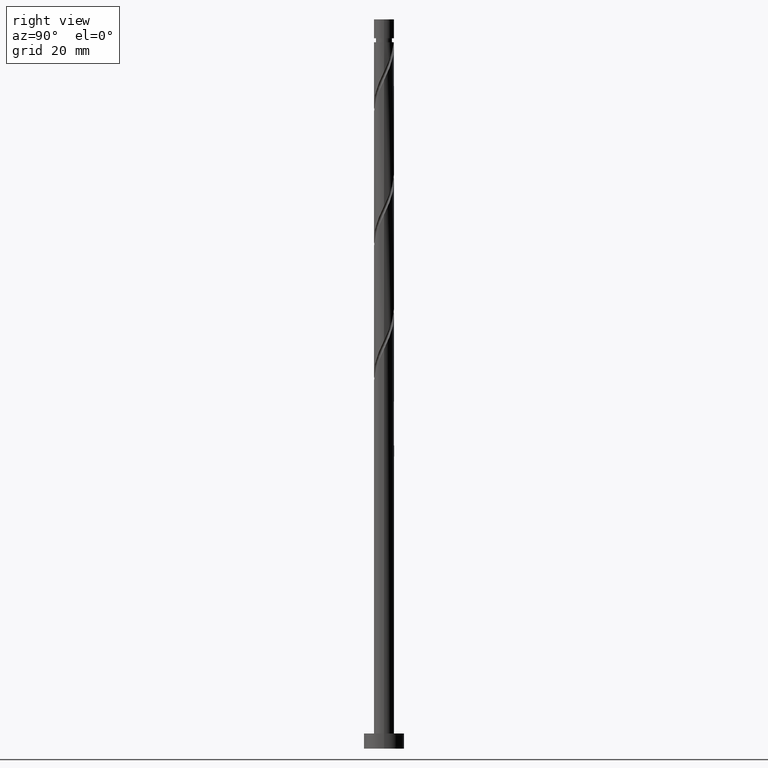
[diagram: clean part render]
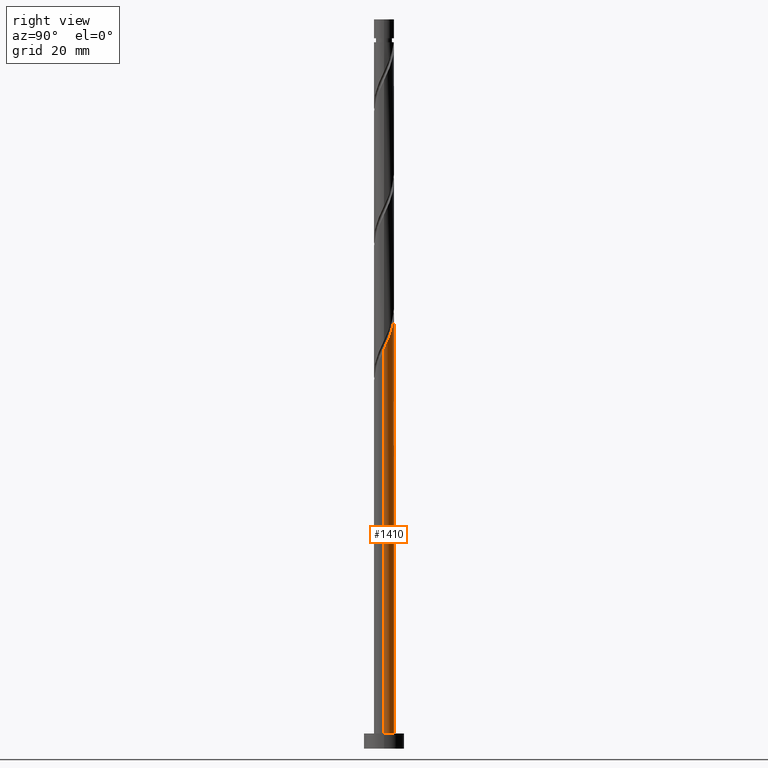
[diagram: same view with one face highlighted and labeled with its STEP entity id]
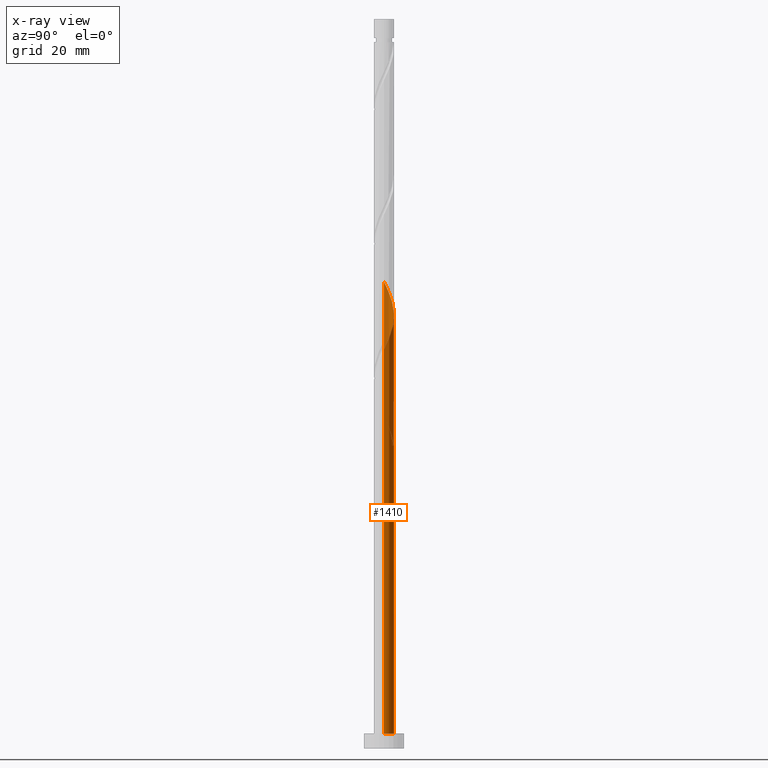
[diagram: x-ray of the same camera — body ghosted, the highlighted face saturated]
A machine part, right view. The second image highlights one B-rep face of the part: STEP entity #1410.
The next image is the same camera in x-ray: the body ghosted, the highlighted face saturated — about 0% of this face is hidden behind the body in this view.
In plain terms, the highlighted cylindrical surface (edge-blend (fillet) strip) has radius 2 mm, axis along (-0, -0, -1).
Its self-contained STEP definition (entity closure, byte-faithful):
#8 =( BOUNDED_CURVE ( )  B_SPLINE_CURVE ( 2, ( #1350, #1491, #197, #1230, #717, #70, #586, #725, #737, #1267, #1294 ),
 .UNSPECIFIED., .F., .T. ) 
 B_SPLINE_CURVE_WITH_KNOTS ( ( 3, 2, 2, 2, 2, 3 ),
 ( 0.000000000000000000, 0.01136363636363635354, 0.02272727272727270709, 0.03409090909090906063, 0.04545454545454541417, 0.05452521624175140497 ),
 .UNSPECIFIED. ) 
 CURVE ( )  GEOMETRIC_REPRESENTATION_ITEM ( )  RATIONAL_B_SPLINE_CURVE ( ( 0.9090909090909258250, 0.8998376744372282854, 0.9090909090909258250, 0.8998376744372282854, 0.9090909090909258250, 0.8998376744372282854, 0.9090909090909258250, 0.8998376744372282854, 0.9090909090909258250, 0.9017048011080056602, 0.9061101570135663419 ) ) 
 REPRESENTATION_ITEM ( '' )  );
#12 = DIRECTION ( 'NONE',  ( -0.000000000000000000, -0.000000000000000000, -1.000000000000000000 ) ) ;
#34 = CARTESIAN_POINT ( 'NONE',  ( -1.999999999999999112, 0.05755105304764902840, 67.46219427857302264 ) ) ;
#41 = CARTESIAN_POINT ( 'NONE',  ( -1.220637884402353768, 1.584311571365223825, 63.70453477368732820 ) ) ;
#47 = CARTESIAN_POINT ( 'NONE',  ( -0.1703224295138022204, 1.992734370156873824, 61.28029234944492032 ) ) ;
#70 = CARTESIAN_POINT ( 'NONE',  ( -1.600603406160407305, 1.233189980288575072, 63.09847416762673333 ) ) ;
#78 = CARTESIAN_POINT ( 'NONE',  ( -1.600603406160407305, 1.233189980288575072, 89.76514083429340474 ) ) ;
#88 = CARTESIAN_POINT ( 'NONE',  ( 1.617545623245914888, 1.176242388590887922, 81.88635295550554360 ) ) ;
#102 = CARTESIAN_POINT ( 'NONE',  ( -1.999999999999999112, 2.146303770951738101E-15, 67.58429228329124783 ) ) ;
#119 = CARTESIAN_POINT ( 'NONE',  ( -0.3979949748426483969, 1.960000000000003073, 86.73483780399037357 ) ) ;
#149 = DIRECTION ( 'NONE',  ( -1.000000000000000000, 0.000000000000000000, 0.000000000000000000 ) ) ;
#174 = CARTESIAN_POINT ( 'NONE',  ( -1.980155124014550738, 0.4020876473299554443, 66.73483780399035936 ) ) ;
#180 = CARTESIAN_POINT ( 'NONE',  ( -1.786663747202081876, 0.9436744384215539627, 65.52271659186915542 ) ) ;
#197 = CARTESIAN_POINT ( 'NONE',  ( -0.9340691933046030293, 1.768478086411957806, 61.28029234944492032 ) ) ;
#202 = VERTEX_POINT ( 'NONE', #473 ) ;
#208 = VERTEX_POINT ( 'NONE', #605 ) ;
#238 = CARTESIAN_POINT ( 'NONE',  ( -1.394470680848408417, 1.433684595806968387, 89.15908022823278145 ) ) ;
#247 = ORIENTED_EDGE ( 'NONE', *, *, #1112, .F. ) ;
#250 = CARTESIAN_POINT ( 'NONE',  ( 2.000000000000003553, 1.450811608239142856E-15, 79.21871665802281370 ) ) ;
#292 = LINE ( 'NONE', #1178, #783 ) ;
#309 = AXIS2_PLACEMENT_3D ( 'NONE', #1012, #891, #1521 ) ;
#317 = CARTESIAN_POINT ( 'NONE',  ( 0.3979949748426488965, 1.959999999999999520, 60.06817113732369506 ) ) ;
#358 = CARTESIAN_POINT ( 'NONE',  ( -0.1161895186125002782, 2.017223038501450905, 86.12877719792975029 ) ) ;
#367 = VERTEX_POINT ( 'NONE', #250 ) ;
#369 = CARTESIAN_POINT ( 'NONE',  ( 0.4568343776401064815, 1.968245701812304516, 84.91665598580854635 ) ) ;
#457 = DIRECTION ( 'NONE',  ( -0.000000000000000000, -0.000000000000000000, -1.000000000000000000 ) ) ;
#461 = CARTESIAN_POINT ( 'NONE',  ( -1.188337955536409307, 1.634179211325361480, 88.55301962217218659 ) ) ;
#471 = CARTESIAN_POINT ( 'NONE',  ( 1.220637884402356210, 1.584311571365226490, 83.09847416762670491 ) ) ;
#473 = CARTESIAN_POINT ( 'NONE',  ( 0.3979949748426488965, 1.959999999999999520, 60.06817113732369506 ) ) ;
#485 = CARTESIAN_POINT ( 'NONE',  ( -0.9340691933046030293, 1.768478086411957806, 87.94695901611154909 ) ) ;
#489 = CYLINDRICAL_SURFACE ( 'NONE', #309, 2.000000000000000000 ) ;
#494 = ORIENTED_EDGE ( 'NONE', *, *, #643, .F. ) ;
#547 = VECTOR ( 'NONE', #457, 1000.000000000000000 ) ;
#566 = CARTESIAN_POINT ( 'NONE',  ( 0.1161895186125007917, 2.017223038501447352, 60.67423174338430414 ) ) ;
#586 = CARTESIAN_POINT ( 'NONE',  ( -1.741900447066340618, 0.9827425057002951991, 63.70453477368732820 ) ) ;
#589 = ORIENTED_EDGE ( 'NONE', *, *, #782, .T. ) ;
#595 = ORIENTED_EDGE ( 'NONE', *, *, #1022, .T. ) ;
#600 = ORIENTED_EDGE ( 'NONE', *, *, #1195, .T. ) ;
#605 = CARTESIAN_POINT ( 'NONE',  ( 2.000000000000000000, 2.449293598294706414E-16, 3.000000000000000000 ) ) ;
#620 = EDGE_CURVE ( 'NONE', #953, #202, #1168, .T. ) ;
#628 = CIRCLE ( 'NONE', #1513, 2.000000000000000000 ) ;
#633 = VERTEX_POINT ( 'NONE', #1336 ) ;
#636 = CARTESIAN_POINT ( 'NONE',  ( -0.6798004310727968624, 1.902776961498554797, 87.34089841005095423 ) ) ;
#643 = EDGE_CURVE ( 'NONE', #367, #994, #1224, .T. ) ;
#690 = CARTESIAN_POINT ( 'NONE',  ( -0.4568343776401053158, 1.968245701812300963, 61.88635295550550808 ) ) ;
#707 = VERTEX_POINT ( 'NONE', #1269 ) ;
#716 = EDGE_LOOP ( 'NONE', ( #494, #600, #589, #990, #247, #595, #1116, #830 ) ) ;
#717 = CARTESIAN_POINT ( 'NONE',  ( -1.394470680848408417, 1.433684595806968387, 62.49241356156613847 ) ) ;
#725 = CARTESIAN_POINT ( 'NONE',  ( -1.883197487972274597, 0.7322950311120153266, 64.31059537974793727 ) ) ;
#728 = CARTESIAN_POINT ( 'NONE',  ( -2.000000000000005329, 0.2290578547702384615, 92.06609003838484284 ) ) ;
#737 = CARTESIAN_POINT ( 'NONE',  ( -1.948211798543803219, 0.4521844623765087223, 64.91665598580854635 ) ) ;
#739 = CARTESIAN_POINT ( 'NONE',  ( 0.1703224295138031086, 1.992734370156877821, 85.52271659186915542 ) ) ;
#767 = EDGE_CURVE ( 'NONE', #994, #953, #1104, .T. ) ;
#782 = EDGE_CURVE ( 'NONE', #208, #869, #1430, .T. ) ;
#783 = VECTOR ( 'NONE', #12, 1000.000000000000000 ) ;
#818 = EDGE_CURVE ( 'NONE', #707, #869, #1362, .T. ) ;
#830 = ORIENTED_EDGE ( 'NONE', *, *, #767, .F. ) ;
#849 = DIRECTION ( 'NONE',  ( 1.000000000000000000, 0.000000000000000000, 0.000000000000000000 ) ) ;
#864 = AXIS2_PLACEMENT_3D ( 'NONE', #977, #1488, #849 ) ;
#869 = VERTEX_POINT ( 'NONE', #1234 ) ;
#878 = CARTESIAN_POINT ( 'NONE',  ( 1.980155124014553847, 0.4020876473299552778, 80.06817113732368796 ) ) ;
#887 = CARTESIAN_POINT ( 'NONE',  ( 1.883409435608319527, 0.6728810428757548978, 80.67423174338429703 ) ) ;
#891 = DIRECTION ( 'NONE',  ( -0.000000000000000000, -0.000000000000000000, -1.000000000000000000 ) ) ;
#928 = CARTESIAN_POINT ( 'NONE',  ( -1.996690616564938958, 0.1150068768444773154, 67.34089841005098265 ) ) ;
#952 = CARTESIAN_POINT ( 'NONE',  ( -1.448427499289741238, 1.408810338760219993, 64.31059537974793727 ) ) ;
#953 = VERTEX_POINT ( 'NONE', #102 ) ;
#963 = CARTESIAN_POINT ( 'NONE',  ( 2.000000000000003109, 0.05755105304764836921, 79.34081466274103889 ) ) ;
#977 = CARTESIAN_POINT ( 'NONE',  ( 0.000000000000000000, 0.000000000000000000, 3.000000000000000000 ) ) ;
#990 = ORIENTED_EDGE ( 'NONE', *, *, #818, .F. ) ;
#993 = CARTESIAN_POINT ( 'NONE',  ( 0.9928482695149684067, 1.759812803970230322, 83.70453477368732820 ) ) ;
#994 = VERTEX_POINT ( 'NONE', #1174 ) ;
#1012 = CARTESIAN_POINT ( 'NONE',  ( 0.000000000000000000, 0.000000000000000000, 144.5999999999999943 ) ) ;
#1022 = EDGE_CURVE ( 'NONE', #633, #202, #628, .T. ) ;
#1027 = CARTESIAN_POINT ( 'NONE',  ( 0.7248413235775370556, 1.864029252891267419, 84.31059537974793727 ) ) ;
#1050 = CARTESIAN_POINT ( 'NONE',  ( 0.000000000000000000, 0.000000000000000000, 60.06817113732369506 ) ) ;
#1104 = LINE ( 'NONE', #1612, #547 ) ;
#1112 = EDGE_CURVE ( 'NONE', #633, #707, #8, .T. ) ;
#1116 = ORIENTED_EDGE ( 'NONE', *, *, #620, .F. ) ;
#1131 = FACE_OUTER_BOUND ( 'NONE', #716, .T. ) ;
#1146 = CARTESIAN_POINT ( 'NONE',  ( -1.883197487972274597, 0.7322950311120153266, 90.97726204641462289 ) ) ;
#1168 =( BOUNDED_CURVE ( )  B_SPLINE_CURVE ( 2, ( #1316, #34, #928, #174, #1206, #180, #1464, #952, #41, #1582, #1328, #690, #47, #566, #317 ),
 .UNSPECIFIED., .F., .T. ) 
 B_SPLINE_CURVE_WITH_KNOTS ( ( 3, 2, 2, 2, 2, 2, 2, 3 ),
 ( 0.9295252162417514397, 0.9318181818181817677, 0.9431818181818182323, 0.9545454545454545858, 0.9659090909090909394, 0.9772727272727272929, 0.9886363636363636465, 1.000000000000000000 ),
 .UNSPECIFIED. ) 
 CURVE ( )  GEOMETRIC_REPRESENTATION_ITEM ( )  RATIONAL_B_SPLINE_CURVE ( ( 0.9061101570135594585, 0.9072237824201415668, 0.9090909090909189416, 0.8998376744372211800, 0.9090909090909189416, 0.8998376744372211800, 0.9090909090909189416, 0.8998376744372211800, 0.9090909090909189416, 0.8998376744372211800, 0.9090909090909189416, 0.8998376744372211800, 0.9090909090909189416, 0.8998376744372211800, 0.9090909090909189416 ) ) 
 REPRESENTATION_ITEM ( '' )  );
#1174 = CARTESIAN_POINT ( 'NONE',  ( -2.000000000000003553, -1.570466173867113261E-15, 92.55204999135617072 ) ) ;
#1178 = CARTESIAN_POINT ( 'NONE',  ( 2.000000000000000000, 2.449293598294706414E-16, 144.5999999999999943 ) ) ;
#1195 = EDGE_CURVE ( 'NONE', #367, #208, #292, .T. ) ;
#1206 = CARTESIAN_POINT ( 'NONE',  ( -1.883409435608315752, 0.6728810428757545647, 66.12877719792975029 ) ) ;
#1224 =( BOUNDED_CURVE ( )  B_SPLINE_CURVE ( 2, ( #1595, #963, #1279, #878, #887, #1617, #88, #1384, #471, #993, #1027, #369, #739, #358, #119, #636, #485, #461, #238, #78, #1393, #1146, #1494, #728, #1250 ),
 .UNSPECIFIED., .F., .T. ) 
 B_SPLINE_CURVE_WITH_KNOTS ( ( 3, 2, 2, 2, 2, 2, 2, 2, 2, 2, 2, 2, 3 ),
 ( 0.1795252162417514397, 0.1818181818181817677, 0.1931818181818182323, 0.2045454545454545858, 0.2159090909090909394, 0.2272727272727272929, 0.2386363636363636465, 0.2500000000000000000, 0.2613636363636363535, 0.2727272727272727071, 0.2840909090909090606, 0.2954545454545454142, 0.3045252162417516062 ),
 .UNSPECIFIED. ) 
 CURVE ( )  GEOMETRIC_REPRESENTATION_ITEM ( )  RATIONAL_B_SPLINE_CURVE ( ( 0.9061101570135663419, 0.9072237824201485612, 0.9090909090909258250, 0.8998376744372282854, 0.9090909090909258250, 0.8998376744372282854, 0.9090909090909258250, 0.8998376744372282854, 0.9090909090909258250, 0.8998376744372282854, 0.9090909090909258250, 0.8998376744372282854, 0.9090909090909258250, 0.8998376744372282854, 0.9090909090909258250, 0.8998376744372282854, 0.9090909090909258250, 0.8998376744372282854, 0.9090909090909258250, 0.8998376744372282854, 0.9090909090909258250, 0.8998376744372282854, 0.9090909090909258250, 0.9017048011080054382, 0.9061101570135665639 ) ) 
 REPRESENTATION_ITEM ( '' )  );
#1230 = CARTESIAN_POINT ( 'NONE',  ( -1.188337955536409307, 1.634179211325361480, 61.88635295550552229 ) ) ;
#1234 = CARTESIAN_POINT ( 'NONE',  ( -2.000000000000000000, 0.000000000000000000, 3.000000000000000000 ) ) ;
#1250 = CARTESIAN_POINT ( 'NONE',  ( -2.000000000000003553, -1.570466173867113261E-15, 92.55204999135617072 ) ) ;
#1267 = CARTESIAN_POINT ( 'NONE',  ( -2.000000000000003997, 0.2290578547702434020, 65.39942337171818565 ) ) ;
#1269 = CARTESIAN_POINT ( 'NONE',  ( -2.000000000000003553, -1.570466173867113261E-15, 65.88538332468947090 ) ) ;
#1279 = CARTESIAN_POINT ( 'NONE',  ( 1.996690616564942955, 0.1150068768444766631, 79.46211053126309309 ) ) ;
#1294 = CARTESIAN_POINT ( 'NONE',  ( -2.000000000000003553, -1.570466173867113261E-15, 65.88538332468947090 ) ) ;
#1306 = DIRECTION ( 'NONE',  ( 0.000000000000000000, -0.000000000000000000, -1.000000000000000000 ) ) ;
#1316 = CARTESIAN_POINT ( 'NONE',  ( -1.999999999999999112, 2.146303770951738496E-15, 67.58429228329124783 ) ) ;
#1328 = CARTESIAN_POINT ( 'NONE',  ( -0.7248413235775359453, 1.864029252891264754, 62.49241356156613136 ) ) ;
#1336 = CARTESIAN_POINT ( 'NONE',  ( -0.3979949748426482858, 1.960000000000003073, 60.06817113732369506 ) ) ;
#1350 = CARTESIAN_POINT ( 'NONE',  ( -0.3979949748426482858, 1.960000000000003073, 60.06817113732369506 ) ) ;
#1362 = LINE ( 'NONE', #1541, #1456 ) ;
#1384 = CARTESIAN_POINT ( 'NONE',  ( 1.448427499289744791, 1.408810338760220882, 82.49241356156611005 ) ) ;
#1393 = CARTESIAN_POINT ( 'NONE',  ( -1.741900447066340618, 0.9827425057002951991, 90.37120144035401381 ) ) ;
#1396 = DIRECTION ( 'NONE',  ( -0.000000000000000000, -0.000000000000000000, -1.000000000000000000 ) ) ;
#1410 = ADVANCED_FACE ( 'NONE', ( #1131 ), #489, .T. ) ;
#1430 = CIRCLE ( 'NONE', #864, 2.000000000000000000 ) ;
#1456 = VECTOR ( 'NONE', #1396, 1000.000000000000000 ) ;
#1464 = CARTESIAN_POINT ( 'NONE',  ( -1.617545623245911113, 1.176242388590886589, 64.91665598580854635 ) ) ;
#1488 = DIRECTION ( 'NONE',  ( 0.000000000000000000, 0.000000000000000000, 1.000000000000000000 ) ) ;
#1491 = CARTESIAN_POINT ( 'NONE',  ( -0.6798004310727968624, 1.902776961498554797, 60.67423174338430414 ) ) ;
#1494 = CARTESIAN_POINT ( 'NONE',  ( -1.948211798543803219, 0.4521844623765087223, 91.58332265247520354 ) ) ;
#1513 = AXIS2_PLACEMENT_3D ( 'NONE', #1050, #1306, #149 ) ;
#1521 = DIRECTION ( 'NONE',  ( -1.000000000000000000, 0.000000000000000000, 0.000000000000000000 ) ) ;
#1541 = CARTESIAN_POINT ( 'NONE',  ( -2.000000000000000000, 0.000000000000000000, 144.5999999999999943 ) ) ;
#1582 = CARTESIAN_POINT ( 'NONE',  ( -0.9928482695149670745, 1.759812803970227879, 63.09847416762673333 ) ) ;
#1595 = CARTESIAN_POINT ( 'NONE',  ( 2.000000000000003553, 1.450811608239142856E-15, 79.21871665802281370 ) ) ;
#1612 = CARTESIAN_POINT ( 'NONE',  ( -2.000000000000000000, 0.000000000000000000, 144.5999999999999943 ) ) ;
#1617 = CARTESIAN_POINT ( 'NONE',  ( 1.786663747202085428, 0.9436744384215547399, 81.28029234944490611 ) ) ;